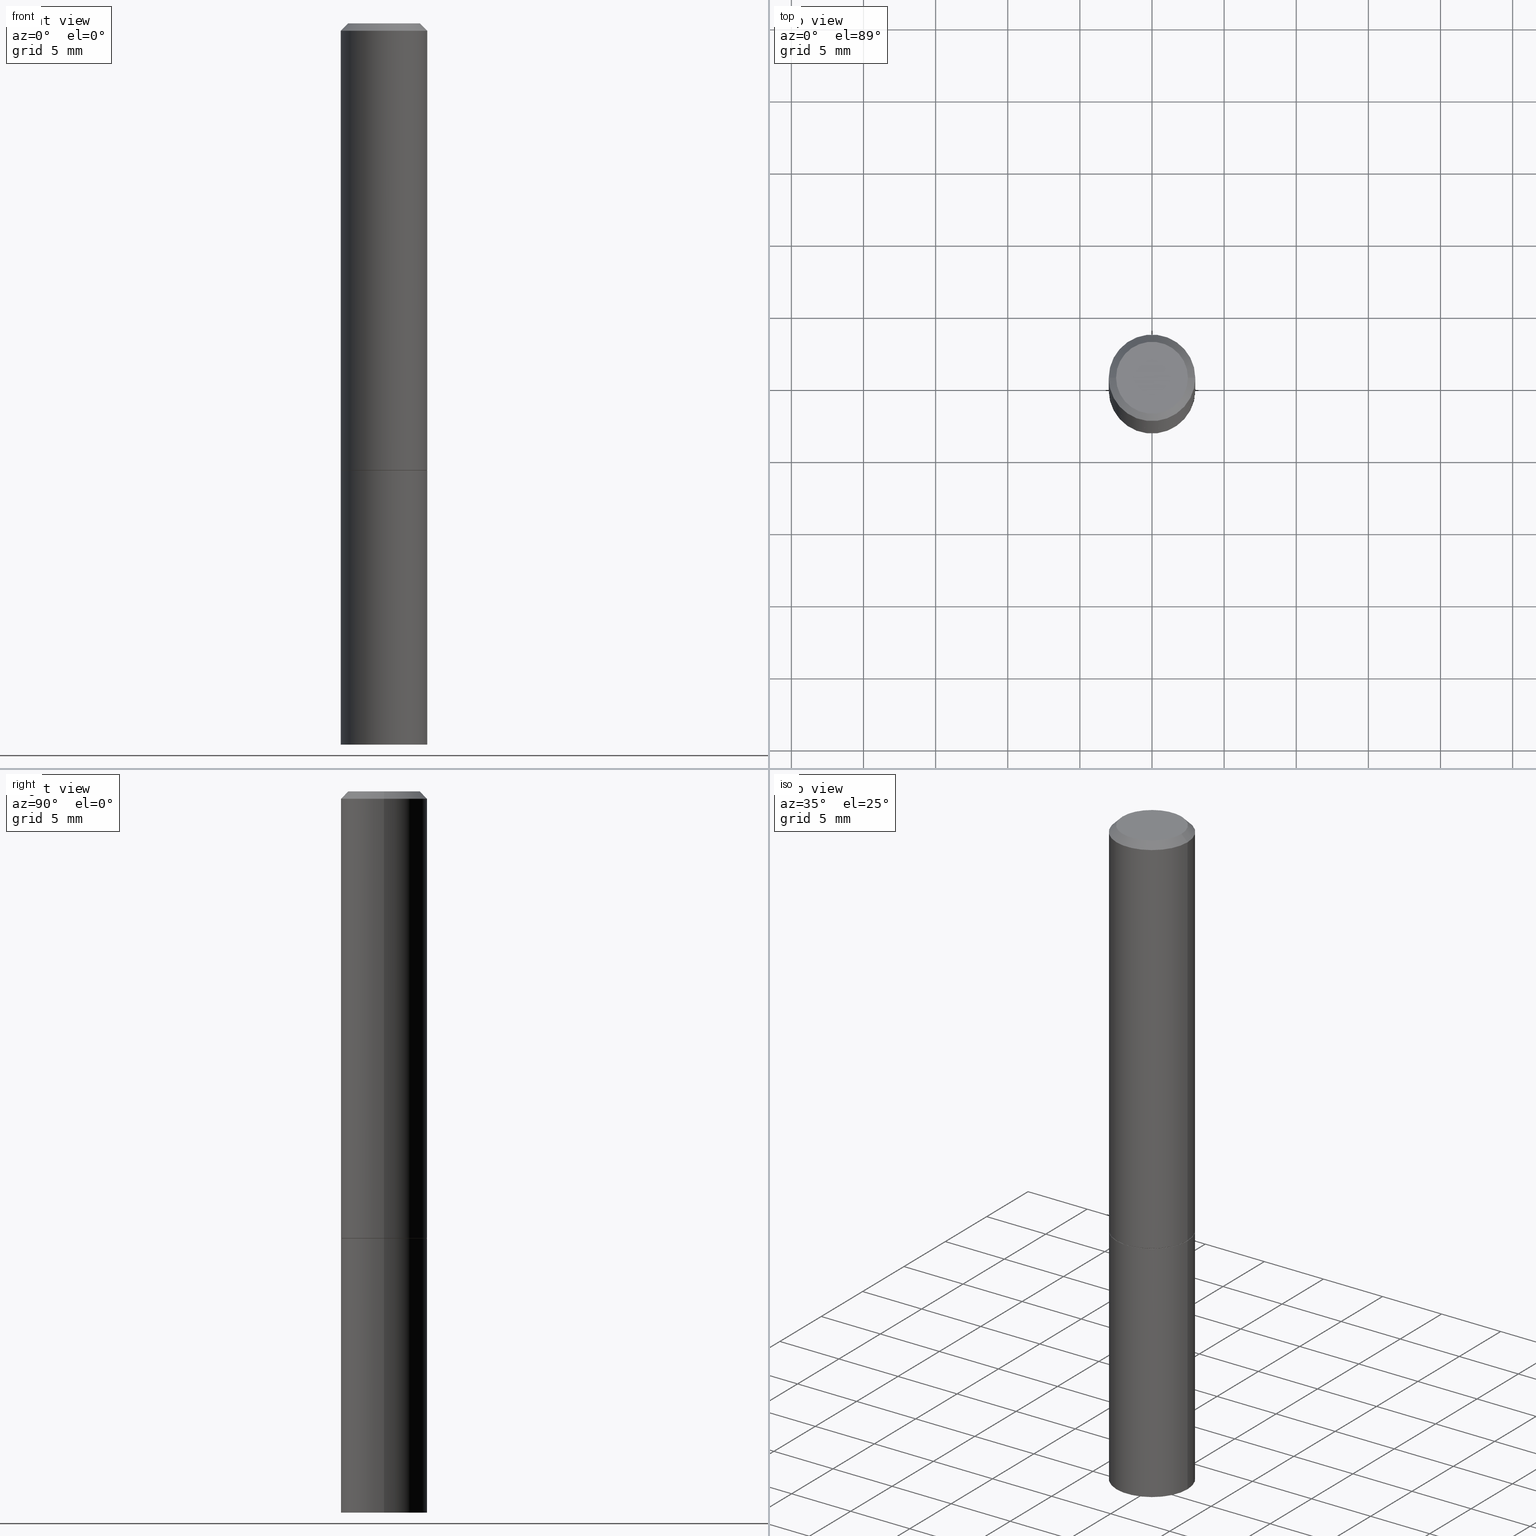
[diagram: canonical four-view strip — front | top / right | iso, engineering-drawing reading convention]
A machine part, canonical four-view strip (front | top / right | iso — engineering-drawing reading convention). The complete STEP part file that produces these views, byte-faithful:
ISO-10303-21;
HEADER;
FILE_DESCRIPTION (( 'STEP AP203' ),
    '1' );
FILE_NAME ('48680.STEP',
    '2024-02-28T13:44:43',
    ( '' ),
    ( '' ),
    'SwSTEP 2.0',
    'SolidWorks 2023',
    '' );
FILE_SCHEMA (( 'CONFIG_CONTROL_DESIGN' ));
ENDSEC;

DATA;
#1 = VERTEX_POINT ( 'NONE', #295 ) ;
#2 = APPROVAL_PERSON_ORGANIZATION ( #140, #302, #58 ) ;
#3 = ORIENTED_EDGE ( 'NONE', *, *, #310, .F. ) ;
#4 = EDGE_CURVE ( 'NONE', #172, #119, #230, .T. ) ;
#5 = FACE_OUTER_BOUND ( 'NONE', #227, .T. ) ;
#6 = APPLICATION_PROTOCOL_DEFINITION ( 'international standard', 'config_control_design', 1994, #94 ) ;
#7 = DIMENSIONAL_EXPONENTS ( 1.000000000000000000, 0.000000000000000000, 0.000000000000000000, 0.000000000000000000, 0.000000000000000000, 0.000000000000000000, 0.000000000000000000 ) ;
#8 =( GEOMETRIC_REPRESENTATION_CONTEXT ( 3 ) GLOBAL_UNCERTAINTY_ASSIGNED_CONTEXT ( ( #222 ) ) GLOBAL_UNIT_ASSIGNED_CONTEXT ( ( #129, #211, #109 ) ) REPRESENTATION_CONTEXT ( 'NONE', 'WORKASPACE' ) );
#9 = DIRECTION ( 'NONE',  ( 1.000000000000000000, -6.982962677686265133E-15, 0.000000000000000000 ) ) ;
#10 = APPROVAL_STATUS ( 'not_yet_approved' ) ;
#11 = PRODUCT_RELATED_PRODUCT_CATEGORY ( 'detail', '', ( #132 ) ) ;
#12 = COORDINATED_UNIVERSAL_TIME_OFFSET ( 5, 0, .BEHIND. ) ;
#13 = PRODUCT_DEFINITION_SHAPE ( 'NONE', 'NONE',  #315 ) ;
#14 = LINE ( 'NONE', #107, #83 ) ;
#15 = DIRECTION ( 'NONE',  ( -2.445468806185136597E-29, 3.491481338843145583E-15, 1.000000000000000000 ) ) ;
#16 = LOCAL_TIME ( 8, 44, 43.00000000000000000, #12 ) ;
#17 = PERSON_AND_ORGANIZATION ( #31, #317 ) ;
#18 = DIRECTION ( 'NONE',  ( 1.000000000000000000, -6.982962677686266711E-15, 4.876176775795936353E-29 ) ) ;
#19 = CARTESIAN_POINT ( 'NONE',  ( 0.000000000000000000, 0.000000000000000000, 0.000000000000000000 ) ) ;
#20 = PERSON_AND_ORGANIZATION_ROLE ( 'classification_officer' ) ;
#21 = EDGE_CURVE ( 'NONE', #1, #60, #156, .T. ) ;
#22 = APPLICATION_CONTEXT ( 'configuration controlled 3d designs of mechanical parts and assemblies' ) ;
#23 = FACE_OUTER_BOUND ( 'NONE', #259, .T. ) ;
#24 = SECURITY_CLASSIFICATION_LEVEL ( 'unclassified' ) ;
#25 = DIRECTION ( 'NONE',  ( 0.7071067811866199593, -2.468850131083015945E-15, 0.7071067811864750752 ) ) ;
#26 = VECTOR ( 'NONE', #126, 39.37007874015748143 ) ;
#27 = CIRCLE ( 'NONE', #284, 0.1170999999999999958 ) ;
#28 = COORDINATED_UNIVERSAL_TIME_OFFSET ( 5, 0, .BEHIND. ) ;
#29 = PLANE ( 'NONE',  #68 ) ;
#30 = ADVANCED_FACE ( 'NONE', ( #5 ), #320, .T. ) ;
#31 = PERSON ( 'UNSPECIFIED', 'UNSPECIFIED', 'UNSPECIFIED', ('UNSPECIFIED'), ('UNSPECIFIED'), ('UNSPECIFIED') ) ;
#32 = PERSON_AND_ORGANIZATION ( #31, #317 ) ;
#33 = VERTEX_POINT ( 'NONE', #44 ) ;
#34 = ORIENTED_EDGE ( 'NONE', *, *, #201, .T. ) ;
#35 = APPROVAL ( #10, 'UNSPECIFIED' ) ;
#36 = ORIENTED_EDGE ( 'NONE', *, *, #247, .F. ) ;
#37 = ORIENTED_EDGE ( 'NONE', *, *, #4, .T. ) ;
#38 = CLOSED_SHELL ( 'NONE', ( #254, #274, #366, #234, #30, #195, #89, #306 ) ) ;
#39 = AXIS2_PLACEMENT_3D ( 'NONE', #19, #196, #198 ) ;
#40 = ORIENTED_EDGE ( 'NONE', *, *, #282, .T. ) ;
#41 = DIRECTION ( 'NONE',  ( -2.445468806185136877E-29, 3.491481338843145188E-15, 1.000000000000000000 ) ) ;
#42 = PERSON_AND_ORGANIZATION_ROLE ( 'creator' ) ;
#43 = AXIS2_PLACEMENT_3D ( 'NONE', #269, #75, #162 ) ;
#44 = CARTESIAN_POINT ( 'NONE',  ( 0.1180999999999998301, -8.800544403136797528E-16, -0.02000000000000003511 ) ) ;
#45 = APPLICATION_PROTOCOL_DEFINITION ( 'international standard', 'config_control_design', 1994, #22 ) ;
#46 = CARTESIAN_POINT ( 'NONE',  ( 2.984694677948958911E-29, -4.261352974058059028E-15, -1.220499999999999918 ) ) ;
#47 = CARTESIAN_POINT ( 'NONE',  ( -0.1180999999999998301, 7.548582654578837811E-16, -0.02000000000000003511 ) ) ;
#48 = EDGE_LOOP ( 'NONE', ( #147, #149, #231, #263 ) ) ;
#49 = PERSON_AND_ORGANIZATION ( #31, #317 ) ;
#50 = DIRECTION ( 'NONE',  ( -2.445468806185136597E-29, 3.491481338843145583E-15, 1.000000000000000000 ) ) ;
#51 = CARTESIAN_POINT ( 'NONE',  ( 0.000000000000000000, 0.000000000000000000, 0.000000000000000000 ) ) ;
#52 = AXIS2_PLACEMENT_3D ( 'NONE', #270, #77, #323 ) ;
#53 = LOCAL_TIME ( 8, 44, 43.00000000000000000, #28 ) ;
#54 = DIRECTION ( 'NONE',  ( 1.000000000000000000, -6.982962677686266711E-15, 4.876195163481339890E-29 ) ) ;
#55 = DIRECTION ( 'NONE',  ( -2.445468806185136597E-29, 3.491481338843145583E-15, 1.000000000000000000 ) ) ;
#56 = DIRECTION ( 'NONE',  ( 1.000000000000000000, -6.982962677686266711E-15, 0.000000000000000000 ) ) ;
#57 = ADVANCED_FACE ( 'NONE', ( #238 ), #349, .F. ) ;
#58 = APPROVAL_ROLE ( '' ) ;
#59 = ORIENTED_EDGE ( 'NONE', *, *, #164, .T. ) ;
#60 = VERTEX_POINT ( 'NONE', #76 ) ;
#61 = APPROVAL_PERSON_ORGANIZATION ( #244, #35, #352 ) ;
#62 = EDGE_CURVE ( 'NONE', #90, #175, #213, .T. ) ;
#63 = VERTEX_POINT ( 'NONE', #160 ) ;
#64 = EDGE_LOOP ( 'NONE', ( #205, #285, #342, #123 ) ) ;
#65 = ORIENTED_EDGE ( 'NONE', *, *, #62, .F. ) ;
#66 = AXIS2_PLACEMENT_3D ( 'NONE', #189, #50, #18 ) ;
#67 = AXIS2_PLACEMENT_3D ( 'NONE', #127, #210, #235 ) ;
#68 = AXIS2_PLACEMENT_3D ( 'NONE', #144, #99, #103 ) ;
#69 = CC_DESIGN_PERSON_AND_ORGANIZATION_ASSIGNMENT ( #17, #226, ( #74 ) ) ;
#70 = DIRECTION ( 'NONE',  ( 1.000000000000000000, -6.982962677686265133E-15, 0.000000000000000000 ) ) ;
#71 = CARTESIAN_POINT ( 'NONE',  ( 0.1170999999999999958, -5.079057903615120487E-15, -1.220499999999999918 ) ) ;
#72 = DIRECTION ( 'NONE',  ( -1.000000000000000000, 6.982962677686266711E-15, 0.000000000000000000 ) ) ;
#73 =( LENGTH_UNIT ( ) NAMED_UNIT ( * ) SI_UNIT ( $, .METRE. ) );
#74 = PRODUCT_DEFINITION_FORMATION_WITH_SPECIFIED_SOURCE ( 'ANY', '', #132, .NOT_KNOWN. ) ;
#75 = DIRECTION ( 'NONE',  ( -2.445468806185136597E-29, 3.491481338843145583E-15, 1.000000000000000000 ) ) ;
#76 = CARTESIAN_POINT ( 'NONE',  ( 0.1180999999999999966, -7.697668907747479970E-15, -1.968500000000000139 ) ) ;
#77 = DIRECTION ( 'NONE',  ( 2.438088387897960049E-29, -3.491481338843145188E-15, -1.000000000000000000 ) ) ;
#78 = DIRECTION ( 'NONE',  ( 2.445468806185136597E-29, -3.491481338843145583E-15, -1.000000000000000000 ) ) ;
#79 = DIRECTION ( 'NONE',  ( 1.000000000000000000, -6.982962677686266711E-15, 4.876176775795935793E-29 ) ) ;
#80 = EDGE_CURVE ( 'NONE', #60, #172, #179, .T. ) ;
#81 = DIRECTION ( 'NONE',  ( 0.000000000000000000, 0.000000000000000000, 1.000000000000000000 ) ) ;
#82 = DIRECTION ( 'NONE',  ( 1.000000000000000000, -6.982962677686269077E-15, 0.000000000000000000 ) ) ;
#83 = VECTOR ( 'NONE', #215, 39.37007874015748143 ) ;
#84 = CONICAL_SURFACE ( 'NONE', #362, 0.1180999999999998301, 0.7853981633974471688 ) ;
#85 = CARTESIAN_POINT ( 'NONE',  ( 2.984694677948958911E-29, -4.261352974058059028E-15, -1.220499999999999918 ) ) ;
#86 = DIRECTION ( 'NONE',  ( -2.445468806185136597E-29, 3.491481338843145583E-15, 1.000000000000000000 ) ) ;
#87 = FACE_OUTER_BOUND ( 'NONE', #364, .T. ) ;
#88 = AXIS2_PLACEMENT_3D ( 'NONE', #194, #329, #334 ) ;
#89 = ADVANCED_FACE ( 'NONE', ( #154 ), #265, .F. ) ;
#90 = VERTEX_POINT ( 'NONE', #346 ) ;
#91 = ORIENTED_EDGE ( 'NONE', *, *, #164, .F. ) ;
#92 = CONICAL_SURFACE ( 'NONE', #192, 0.1170999999999999958, 0.7853981633975507526 ) ;
#93 = CC_DESIGN_APPROVAL ( #100, ( #315 ) ) ;
#94 = APPLICATION_CONTEXT ( 'configuration controlled 3d designs of mechanical parts and assemblies' ) ;
#95 = EDGE_LOOP ( 'NONE', ( #98, #316 ) ) ;
#96 = VERTEX_POINT ( 'NONE', #71 ) ;
#97 = ADVANCED_FACE ( 'NONE', ( #181 ), #293, .T. ) ;
#98 = ORIENTED_EDGE ( 'NONE', *, *, #145, .F. ) ;
#99 = DIRECTION ( 'NONE',  ( 2.438088387897960049E-29, -3.491481338843145188E-15, -1.000000000000000000 ) ) ;
#100 = APPROVAL ( #157, 'UNSPECIFIED' ) ;
#101 = DIRECTION ( 'NONE',  ( 1.000000000000000000, -6.982962677686265133E-15, 0.000000000000000000 ) ) ;
#102 = DIRECTION ( 'NONE',  ( -2.445468806185136597E-29, 3.491481338843145583E-15, 1.000000000000000000 ) ) ;
#103 = DIRECTION ( 'NONE',  ( -1.000000000000000000, 6.982962677686265922E-15, -4.876176775795935793E-29 ) ) ;
#104 = AXIS2_PLACEMENT_3D ( 'NONE', #246, #353, #328 ) ;
#105 = DIRECTION ( 'NONE',  ( 1.000000000000000000, -6.982962677686266711E-15, 4.876176775795935793E-29 ) ) ;
#106 = APPROVAL_DATE_TIME ( #133, #35 ) ;
#107 = CARTESIAN_POINT ( 'NONE',  ( 0.1180999999999998301, -8.800544403136797528E-16, -0.02000000000000003511 ) ) ;
#108 = CARTESIAN_POINT ( 'NONE',  ( -0.1180999999999999134, 8.391509709326777040E-16, -5.809262341591039580E-30 ) ) ;
#109 =( NAMED_UNIT ( * ) SI_UNIT ( $, .STERADIAN. ) SOLID_ANGLE_UNIT ( ) );
#110 = DIRECTION ( 'NONE',  ( 2.438088387897960049E-29, -3.491481338843145188E-15, -1.000000000000000000 ) ) ;
#111 = CARTESIAN_POINT ( 'NONE',  ( -0.09809999999999984011, 7.199434520694527237E-16, 4.268512490095498617E-18 ) ) ;
#112 = CIRCLE ( 'NONE', #173, 0.1170999999999999958 ) ;
#113 = CALENDAR_DATE ( 2024, 28, 2 ) ;
#114 = FACE_OUTER_BOUND ( 'NONE', #125, .T. ) ;
#115 = DIRECTION ( 'NONE',  ( 1.000000000000000000, -6.982962677686265133E-15, 0.000000000000000000 ) ) ;
#116 = CIRCLE ( 'NONE', #43, 0.1180999999999998301 ) ;
#117 = CC_DESIGN_PERSON_AND_ORGANIZATION_ASSIGNMENT ( #32, #20, ( #209 ) ) ;
#118 = ORIENTED_EDGE ( 'NONE', *, *, #21, .T. ) ;
#119 = VERTEX_POINT ( 'NONE', #207 ) ;
#120 = EDGE_LOOP ( 'NONE', ( #202, #118, #314, #36 ) ) ;
#121 = VECTOR ( 'NONE', #186, 39.37007874015748143 ) ;
#122 = AXIS2_PLACEMENT_3D ( 'NONE', #248, #168, #354 ) ;
#123 = ORIENTED_EDGE ( 'NONE', *, *, #130, .F. ) ;
#124 = EDGE_CURVE ( 'NONE', #63, #90, #233, .T. ) ;
#125 = EDGE_LOOP ( 'NONE', ( #281, #336, #338, #59 ) ) ;
#126 = DIRECTION ( 'NONE',  ( -0.7071067811866199593, 7.493145998870616062E-15, 0.7071067811864750752 ) ) ;
#127 = CARTESIAN_POINT ( 'NONE',  ( 2.984694677948959472E-29, -4.261352974058059028E-15, -1.220499999999999918 ) ) ;
#128 = LOCAL_TIME ( 8, 44, 43.00000000000000000, #155 ) ;
#129 =( CONVERSION_BASED_UNIT ( 'INCH', #267 ) LENGTH_UNIT ( ) NAMED_UNIT ( #7 ) );
#130 = EDGE_CURVE ( 'NONE', #313, #33, #245, .T. ) ;
#131 = CARTESIAN_POINT ( 'NONE',  ( 4.890937612370281041E-31, -6.982962677686302702E-17, -0.02000000000000003511 ) ) ;
#132 = PRODUCT ( '48680', '48680', '', ( #191 ) ) ;
#133 = DATE_AND_TIME ( #350, #128 ) ;
#134 = DIRECTION ( 'NONE',  ( 1.000000000000000000, -6.982962677686269077E-15, 0.000000000000000000 ) ) ;
#135 = DESIGN_CONTEXT ( 'detailed design', #22, 'design' ) ;
#136 = CALENDAR_DATE ( 2024, 28, 2 ) ;
#137 = CC_DESIGN_SECURITY_CLASSIFICATION ( #209, ( #74 ) ) ;
#138 = CC_DESIGN_PERSON_AND_ORGANIZATION_ASSIGNMENT ( #49, #42, ( #315 ) ) ;
#139 = DIRECTION ( 'NONE',  ( -2.445468806185136877E-29, 3.491481338843145188E-15, 1.000000000000000000 ) ) ;
#140 = PERSON_AND_ORGANIZATION ( #31, #317 ) ;
#141 = FACE_OUTER_BOUND ( 'NONE', #120, .T. ) ;
#142 = DIRECTION ( 'NONE',  ( 1.000000000000000000, -6.982962677686269077E-15, 0.000000000000000000 ) ) ;
#143 = CIRCLE ( 'NONE', #308, 0.1180999999999999966 ) ;
#144 = CARTESIAN_POINT ( 'NONE',  ( 8.246878922347960873E-16, 0.1180999999999931133, -1.968500000000000583 ) ) ;
#145 = EDGE_CURVE ( 'NONE', #60, #1, #343, .T. ) ;
#146 = CLOSED_SHELL ( 'NONE', ( #97, #341, #57, #258 ) ) ;
#147 = ORIENTED_EDGE ( 'NONE', *, *, #145, .T. ) ;
#148 = ORIENTED_EDGE ( 'NONE', *, *, #356, .F. ) ;
#149 = ORIENTED_EDGE ( 'NONE', *, *, #225, .T. ) ;
#150 = ORIENTED_EDGE ( 'NONE', *, *, #310, .T. ) ;
#151 = CIRCLE ( 'NONE', #279, 0.09809999999999984011 ) ;
#152 = EDGE_LOOP ( 'NONE', ( #260, #34, #40, #262 ) ) ;
#153 = LINE ( 'NONE', #304, #283 ) ;
#154 = FACE_OUTER_BOUND ( 'NONE', #204, .T. ) ;
#155 = COORDINATED_UNIVERSAL_TIME_OFFSET ( 5, 0, .BEHIND. ) ;
#156 = CIRCLE ( 'NONE', #339, 0.1180999999999999966 ) ;
#157 = APPROVAL_STATUS ( 'not_yet_approved' ) ;
#158 = DATE_AND_TIME ( #136, #16 ) ;
#159 = DIRECTION ( 'NONE',  ( -2.445468806185136597E-29, 3.491481338843145583E-15, 1.000000000000000000 ) ) ;
#160 = CARTESIAN_POINT ( 'NONE',  ( -0.1170999999999999958, -3.424008976134759437E-15, -1.220499999999999918 ) ) ;
#161 = APPROVAL_ROLE ( '' ) ;
#162 = DIRECTION ( 'NONE',  ( 1.000000000000000000, -6.982962677686266711E-15, 0.000000000000000000 ) ) ;
#163 = CARTESIAN_POINT ( 'NONE',  ( 2.984694677948959472E-29, -4.261352974058059028E-15, -1.220499999999999918 ) ) ;
#164 = EDGE_CURVE ( 'NONE', #175, #33, #116, .T. ) ;
#165 = CIRCLE ( 'NONE', #330, 0.09809999999999984011 ) ;
#166 = APPROVAL_PERSON_ORGANIZATION ( #322, #100, #161 ) ;
#167 = DIRECTION ( 'NONE',  ( -1.000000000000000000, 6.982962677686265922E-15, -4.876176775795935793E-29 ) ) ;
#168 = DIRECTION ( 'NONE',  ( -2.445468806185136597E-29, 3.491481338843145583E-15, 1.000000000000000000 ) ) ;
#169 = DIRECTION ( 'NONE',  ( -2.445468806185136597E-29, 3.491481338843145583E-15, 1.000000000000000000 ) ) ;
#170 = DIRECTION ( 'NONE',  ( 1.000000000000000000, -6.982962677686266711E-15, 4.876195163481339890E-29 ) ) ;
#171 = DATE_AND_TIME ( #113, #193 ) ;
#172 = VERTEX_POINT ( 'NONE', #272 ) ;
#173 = AXIS2_PLACEMENT_3D ( 'NONE', #277, #55, #82 ) ;
#174 = ORIENTED_EDGE ( 'NONE', *, *, #356, .T. ) ;
#175 = VERTEX_POINT ( 'NONE', #291 ) ;
#176 = EDGE_LOOP ( 'NONE', ( #37, #183 ) ) ;
#177 = ORIENTED_EDGE ( 'NONE', *, *, #130, .T. ) ;
#178 = DIRECTION ( 'NONE',  ( -2.445468806185136597E-29, 3.491481338843145583E-15, 1.000000000000000000 ) ) ;
#179 = LINE ( 'NONE', #292, #335 ) ;
#180 = CC_DESIGN_PERSON_AND_ORGANIZATION_ASSIGNMENT ( #200, #360, ( #74 ) ) ;
#181 = FACE_OUTER_BOUND ( 'NONE', #48, .T. ) ;
#182 = APPROVAL_DATE_TIME ( #297, #100 ) ;
#183 = ORIENTED_EDGE ( 'NONE', *, *, #247, .T. ) ;
#184 = AXIS2_PLACEMENT_3D ( 'NONE', #190, #110, #167 ) ;
#185 = CARTESIAN_POINT ( 'NONE',  ( -0.1170999999999999958, -3.429307430482981050E-15, -1.220499999999999918 ) ) ;
#186 = DIRECTION ( 'NONE',  ( -2.445468806185136877E-29, 3.491481338843145188E-15, 1.000000000000000000 ) ) ;
#187 = ADVANCED_BREP_SHAPE_REPRESENTATION ( '48680', ( #337, #219, #318 ), #8 ) ;
#188 = CARTESIAN_POINT ( 'NONE',  ( 0.000000000000000000, 0.000000000000000000, 0.000000000000000000 ) ) ;
#189 = CARTESIAN_POINT ( 'NONE',  ( 0.000000000000000000, 0.000000000000000000, 0.000000000000000000 ) ) ;
#190 = CARTESIAN_POINT ( 'NONE',  ( 6.850286386810215676E-16, 0.09809999999999984011, -3.403800630954618031E-16 ) ) ;
#191 = MECHANICAL_CONTEXT ( 'NONE', #94, 'mechanical' ) ;
#192 = AXIS2_PLACEMENT_3D ( 'NONE', #46, #159, #134 ) ;
#193 = LOCAL_TIME ( 8, 44, 43.00000000000000000, #332 ) ;
#194 = CARTESIAN_POINT ( 'NONE',  ( 2.984694677948959472E-29, -4.261352974058059028E-15, -1.220499999999999918 ) ) ;
#195 = ADVANCED_FACE ( 'NONE', ( #298 ), #92, .T. ) ;
#196 = DIRECTION ( 'NONE',  ( -2.445468806185136597E-29, 3.491481338843145583E-15, 1.000000000000000000 ) ) ;
#197 = FACE_OUTER_BOUND ( 'NONE', #64, .T. ) ;
#198 = DIRECTION ( 'NONE',  ( 1.000000000000000000, -6.982962677686266711E-15, 4.876176775795936353E-29 ) ) ;
#199 = VECTOR ( 'NONE', #212, 39.37007874015748143 ) ;
#200 = PERSON_AND_ORGANIZATION ( #31, #317 ) ;
#201 = EDGE_CURVE ( 'NONE', #365, #33, #14, .T. ) ;
#202 = ORIENTED_EDGE ( 'NONE', *, *, #225, .F. ) ;
#203 = AXIS2_PLACEMENT_3D ( 'NONE', #241, #102, #105 ) ;
#204 = EDGE_LOOP ( 'NONE', ( #208, #229 ) ) ;
#205 = ORIENTED_EDGE ( 'NONE', *, *, #239, .T. ) ;
#206 = ORIENTED_EDGE ( 'NONE', *, *, #124, .F. ) ;
#207 = CARTESIAN_POINT ( 'NONE',  ( -0.1180999999999999966, -4.728016023852716776E-15, -1.220499999999999918 ) ) ;
#208 = ORIENTED_EDGE ( 'NONE', *, *, #289, .F. ) ;
#209 = SECURITY_CLASSIFICATION ( '', '', #24 ) ;
#210 = DIRECTION ( 'NONE',  ( -2.438088387897960049E-29, 3.491481338843145188E-15, 1.000000000000000000 ) ) ;
#211 =( NAMED_UNIT ( * ) PLANE_ANGLE_UNIT ( ) SI_UNIT ( $, .RADIAN. ) );
#212 = DIRECTION ( 'NONE',  ( -0.7071067811865466846, 2.468850131082247989E-15, -0.7071067811865483499 ) ) ;
#213 = LINE ( 'NONE', #108, #121 ) ;
#214 = CARTESIAN_POINT ( 'NONE',  ( 0.09809999999999984011, -7.765346469475328709E-16, 4.268512490105521927E-18 ) ) ;
#215 = DIRECTION ( 'NONE',  ( 0.7071067811865466846, -7.319954787623252890E-15, -0.7071067811865483499 ) ) ;
#216 = DIRECTION ( 'NONE',  ( -2.445468806185136597E-29, 3.491481338843145583E-15, 1.000000000000000000 ) ) ;
#217 = CC_DESIGN_DATE_AND_TIME_ASSIGNMENT ( #158, #236, ( #315 ) ) ;
#218 = DIRECTION ( 'NONE',  ( -1.000000000000000000, 6.982962677686266711E-15, 0.000000000000000000 ) ) ;
#219 = MANIFOLD_SOLID_BREP ( 'Body-Move/Copy2[2]', #38 ) ;
#220 = SHAPE_DEFINITION_REPRESENTATION ( #13, #187 ) ;
#221 = DIRECTION ( 'NONE',  ( 2.445468806185136597E-29, -3.491481338843145583E-15, -1.000000000000000000 ) ) ;
#222 = UNCERTAINTY_MEASURE_WITH_UNIT (LENGTH_MEASURE( 1.000000000000000082E-05 ), #129, 'distance_accuracy_value', 'NONE');
#223 = CARTESIAN_POINT ( 'NONE',  ( 2.982249209142773869E-29, -4.257861492719216809E-15, -1.219500000000000028 ) ) ;
#224 = CALENDAR_DATE ( 2024, 28, 2 ) ;
#225 = EDGE_CURVE ( 'NONE', #1, #119, #153, .T. ) ;
#226 = PERSON_AND_ORGANIZATION_ROLE ( 'creator' ) ;
#227 = EDGE_LOOP ( 'NONE', ( #65, #174, #177, #91 ) ) ;
#228 = EDGE_CURVE ( 'NONE', #311, #365, #165, .T. ) ;
#229 = ORIENTED_EDGE ( 'NONE', *, *, #321, .F. ) ;
#230 = CIRCLE ( 'NONE', #242, 0.1180999999999999966 ) ;
#231 = ORIENTED_EDGE ( 'NONE', *, *, #4, .F. ) ;
#232 = ORIENTED_EDGE ( 'NONE', *, *, #321, .T. ) ;
#233 = LINE ( 'NONE', #185, #26 ) ;
#234 = ADVANCED_FACE ( 'NONE', ( #114 ), #84, .T. ) ;
#235 = DIRECTION ( 'NONE',  ( 1.000000000000000000, -6.982962677686265922E-15, 4.876176775795935793E-29 ) ) ;
#236 = DATE_TIME_ROLE ( 'creation_date' ) ;
#237 = CARTESIAN_POINT ( 'NONE',  ( 0.1180999999999999134, -8.246878922347474737E-16, 5.758764772214996237E-30 ) ) ;
#238 = FACE_OUTER_BOUND ( 'NONE', #176, .T. ) ;
#239 = EDGE_CURVE ( 'NONE', #313, #90, #143, .T. ) ;
#240 = FACE_OUTER_BOUND ( 'NONE', #152, .T. ) ;
#241 = CARTESIAN_POINT ( 'NONE',  ( 0.000000000000000000, 0.000000000000000000, 0.000000000000000000 ) ) ;
#242 = AXIS2_PLACEMENT_3D ( 'NONE', #163, #15, #70 ) ;
#243 = VECTOR ( 'NONE', #25, 39.37007874015748143 ) ;
#244 = PERSON_AND_ORGANIZATION ( #31, #317 ) ;
#245 = LINE ( 'NONE', #237, #303 ) ;
#246 = CARTESIAN_POINT ( 'NONE',  ( 2.982249209142773869E-29, -4.257861492719216809E-15, -1.219500000000000028 ) ) ;
#247 = EDGE_CURVE ( 'NONE', #119, #172, #275, .T. ) ;
#248 = CARTESIAN_POINT ( 'NONE',  ( 2.984694677948958911E-29, -4.261352974058059028E-15, -1.220499999999999918 ) ) ;
#249 = LINE ( 'NONE', #355, #243 ) ;
#250 = DATE_TIME_ROLE ( 'classification_date' ) ;
#251 = LOCAL_TIME ( 8, 44, 43.00000000000000000, #268 ) ;
#252 = CARTESIAN_POINT ( 'NONE',  ( -1.043851414335219820E-46, 1.490343170380447200E-32, 4.268512490100411279E-18 ) ) ;
#253 = CYLINDRICAL_SURFACE ( 'NONE', #39, 0.1180999999999999966 ) ;
#254 = ADVANCED_FACE ( 'NONE', ( #87 ), #312, .T. ) ;
#255 = APPROVAL_DATE_TIME ( #171, #302 ) ;
#256 = CIRCLE ( 'NONE', #104, 0.1180999999999999966 ) ;
#257 = ORIENTED_EDGE ( 'NONE', *, *, #327, .T. ) ;
#258 = ADVANCED_FACE ( 'NONE', ( #141 ), #253, .T. ) ;
#259 = EDGE_LOOP ( 'NONE', ( #325, #257 ) ) ;
#260 = ORIENTED_EDGE ( 'NONE', *, *, #327, .F. ) ;
#261 = CC_DESIGN_APPROVAL ( #35, ( #74 ) ) ;
#262 = ORIENTED_EDGE ( 'NONE', *, *, #345, .F. ) ;
#263 = ORIENTED_EDGE ( 'NONE', *, *, #80, .F. ) ;
#264 = CC_DESIGN_PERSON_AND_ORGANIZATION_ASSIGNMENT ( #299, #294, ( #132 ) ) ;
#265 = PLANE ( 'NONE',  #67 ) ;
#266 = CIRCLE ( 'NONE', #344, 0.1180999999999998301 ) ;
#267 = LENGTH_MEASURE_WITH_UNIT ( LENGTH_MEASURE( 0.02539999999999999897 ), #73 );
#268 = COORDINATED_UNIVERSAL_TIME_OFFSET ( 5, 0, .BEHIND. ) ;
#269 = CARTESIAN_POINT ( 'NONE',  ( 4.890937612370281041E-31, -6.982962677686302702E-17, -0.02000000000000003511 ) ) ;
#270 = CARTESIAN_POINT ( 'NONE',  ( 8.246878922347778449E-16, 0.1180999999999957362, -1.220500000000000362 ) ) ;
#271 = CALENDAR_DATE ( 2024, 28, 2 ) ;
#272 = CARTESIAN_POINT ( 'NONE',  ( 0.1180999999999999966, -5.086040866292807290E-15, -1.220499999999999918 ) ) ;
#273 = AXIS2_PLACEMENT_3D ( 'NONE', #348, #178, #101 ) ;
#274 = ADVANCED_FACE ( 'NONE', ( #197 ), #278, .T. ) ;
#275 = CIRCLE ( 'NONE', #88, 0.1180999999999999966 ) ;
#276 = CARTESIAN_POINT ( 'NONE',  ( 0.1180999999999999966, -5.082549384953964283E-15, -1.219500000000000028 ) ) ;
#277 = CARTESIAN_POINT ( 'NONE',  ( 2.984694677948958911E-29, -4.261352974058059028E-15, -1.220499999999999918 ) ) ;
#278 = CYLINDRICAL_SURFACE ( 'NONE', #296, 0.1180999999999999134 ) ;
#279 = AXIS2_PLACEMENT_3D ( 'NONE', #252, #359, #170 ) ;
#280 = FACE_OUTER_BOUND ( 'NONE', #95, .T. ) ;
#281 = ORIENTED_EDGE ( 'NONE', *, *, #201, .F. ) ;
#282 = EDGE_CURVE ( 'NONE', #33, #175, #266, .T. ) ;
#283 = VECTOR ( 'NONE', #139, 39.37007874015748143 ) ;
#284 = AXIS2_PLACEMENT_3D ( 'NONE', #85, #169, #142 ) ;
#285 = ORIENTED_EDGE ( 'NONE', *, *, #62, .T. ) ;
#286 = ORIENTED_EDGE ( 'NONE', *, *, #124, .T. ) ;
#287 = ORIENTED_EDGE ( 'NONE', *, *, #289, .T. ) ;
#288 = CONICAL_SURFACE ( 'NONE', #357, 0.1180999999999998301, 0.7853981633974471688 ) ;
#289 = EDGE_CURVE ( 'NONE', #96, #63, #112, .T. ) ;
#290 = ORIENTED_EDGE ( 'NONE', *, *, #239, .F. ) ;
#291 = CARTESIAN_POINT ( 'NONE',  ( -0.1180999999999998301, 7.548582654578837811E-16, -0.02000000000000003511 ) ) ;
#292 = CARTESIAN_POINT ( 'NONE',  ( 0.1180999999999999966, -8.246878922347480654E-16, 5.758764772215000440E-30 ) ) ;
#293 = CYLINDRICAL_SURFACE ( 'NONE', #66, 0.1180999999999999966 ) ;
#294 = PERSON_AND_ORGANIZATION_ROLE ( 'design_owner' ) ;
#295 = CARTESIAN_POINT ( 'NONE',  ( -0.1180999999999999966, -4.728016023852716776E-15, -1.968500000000000139 ) ) ;
#296 = AXIS2_PLACEMENT_3D ( 'NONE', #51, #216, #79 ) ;
#297 = DATE_AND_TIME ( #271, #251 ) ;
#298 = FACE_OUTER_BOUND ( 'NONE', #340, .T. ) ;
#299 = PERSON_AND_ORGANIZATION ( #31, #317 ) ;
#300 = DIRECTION ( 'NONE',  ( -2.445468806185136877E-29, 3.491481338843145188E-15, 1.000000000000000000 ) ) ;
#301 = CARTESIAN_POINT ( 'NONE',  ( 4.890937612370281041E-31, -6.982962677686302702E-17, -0.02000000000000003511 ) ) ;
#302 = APPROVAL ( #358, 'UNSPECIFIED' ) ;
#303 = VECTOR ( 'NONE', #300, 39.37007874015748143 ) ;
#304 = CARTESIAN_POINT ( 'NONE',  ( -0.1180999999999999966, 8.391509709326782957E-16, -5.809262341591043784E-30 ) ) ;
#305 = CARTESIAN_POINT ( 'NONE',  ( 4.890937612370281041E-31, -6.982962677686302702E-17, -0.02000000000000003511 ) ) ;
#306 = ADVANCED_FACE ( 'NONE', ( #23 ), #331, .F. ) ;
#307 = DIRECTION ( 'NONE',  ( -2.445468806185136597E-29, 3.491481338843145583E-15, 1.000000000000000000 ) ) ;
#308 = AXIS2_PLACEMENT_3D ( 'NONE', #223, #86, #115 ) ;
#309 = DATE_AND_TIME ( #224, #53 ) ;
#310 = EDGE_CURVE ( 'NONE', #96, #313, #249, .T. ) ;
#311 = VERTEX_POINT ( 'NONE', #111 ) ;
#312 = CONICAL_SURFACE ( 'NONE', #122, 0.1170999999999999958, 0.7853981633975507526 ) ;
#313 = VERTEX_POINT ( 'NONE', #276 ) ;
#314 = ORIENTED_EDGE ( 'NONE', *, *, #80, .T. ) ;
#315 = PRODUCT_DEFINITION ( 'UNKNOWN', '', #74, #135 ) ;
#316 = ORIENTED_EDGE ( 'NONE', *, *, #21, .F. ) ;
#317 = ORGANIZATION ( 'UNSPECIFIED', 'UNSPECIFIED', '' ) ;
#318 = AXIS2_PLACEMENT_3D ( 'NONE', #188, #81, #324 ) ;
#319 = CARTESIAN_POINT ( 'NONE',  ( 4.813905344975441835E-29, -6.872981015512731707E-15, -1.968500000000000139 ) ) ;
#320 = CYLINDRICAL_SURFACE ( 'NONE', #203, 0.1180999999999999134 ) ;
#321 = EDGE_CURVE ( 'NONE', #63, #96, #27, .T. ) ;
#322 = PERSON_AND_ORGANIZATION ( #31, #317 ) ;
#323 = DIRECTION ( 'NONE',  ( -1.000000000000000000, 6.982962677686265922E-15, -4.876176775795935793E-29 ) ) ;
#324 = DIRECTION ( 'NONE',  ( 1.000000000000000000, 0.000000000000000000, 0.000000000000000000 ) ) ;
#325 = ORIENTED_EDGE ( 'NONE', *, *, #228, .T. ) ;
#326 = LINE ( 'NONE', #47, #199 ) ;
#327 = EDGE_CURVE ( 'NONE', #365, #311, #151, .T. ) ;
#328 = DIRECTION ( 'NONE',  ( 1.000000000000000000, -6.982962677686265133E-15, 0.000000000000000000 ) ) ;
#329 = DIRECTION ( 'NONE',  ( -2.445468806185136597E-29, 3.491481338843145583E-15, 1.000000000000000000 ) ) ;
#330 = AXIS2_PLACEMENT_3D ( 'NONE', #333, #361, #54 ) ;
#331 = PLANE ( 'NONE',  #184 ) ;
#332 = COORDINATED_UNIVERSAL_TIME_OFFSET ( 5, 0, .BEHIND. ) ;
#333 = CARTESIAN_POINT ( 'NONE',  ( -1.043851414335219820E-46, 1.490343170380447200E-32, 4.268512490100411279E-18 ) ) ;
#334 = DIRECTION ( 'NONE',  ( 1.000000000000000000, -6.982962677686265133E-15, 0.000000000000000000 ) ) ;
#335 = VECTOR ( 'NONE', #41, 39.37007874015748143 ) ;
#336 = ORIENTED_EDGE ( 'NONE', *, *, #228, .F. ) ;
#337 = MANIFOLD_SOLID_BREP ( 'Body-Move/Copy2[1]', #146 ) ;
#338 = ORIENTED_EDGE ( 'NONE', *, *, #345, .T. ) ;
#339 = AXIS2_PLACEMENT_3D ( 'NONE', #319, #347, #9 ) ;
#340 = EDGE_LOOP ( 'NONE', ( #206, #232, #150, #148 ) ) ;
#341 = ADVANCED_FACE ( 'NONE', ( #280 ), #29, .T. ) ;
#342 = ORIENTED_EDGE ( 'NONE', *, *, #282, .F. ) ;
#343 = CIRCLE ( 'NONE', #273, 0.1180999999999999966 ) ;
#344 = AXIS2_PLACEMENT_3D ( 'NONE', #305, #307, #56 ) ;
#345 = EDGE_CURVE ( 'NONE', #311, #175, #326, .T. ) ;
#346 = CARTESIAN_POINT ( 'NONE',  ( -0.1180999999999999966, -1.324694588815359885E-15, -1.219500000000000028 ) ) ;
#347 = DIRECTION ( 'NONE',  ( -2.445468806185136597E-29, 3.491481338843145583E-15, 1.000000000000000000 ) ) ;
#348 = CARTESIAN_POINT ( 'NONE',  ( 4.813905344975441835E-29, -6.872981015512731707E-15, -1.968500000000000139 ) ) ;
#349 = PLANE ( 'NONE',  #52 ) ;
#350 = CALENDAR_DATE ( 2024, 28, 2 ) ;
#351 = CC_DESIGN_APPROVAL ( #302, ( #209 ) ) ;
#352 = APPROVAL_ROLE ( '' ) ;
#353 = DIRECTION ( 'NONE',  ( -2.445468806185136597E-29, 3.491481338843145583E-15, 1.000000000000000000 ) ) ;
#354 = DIRECTION ( 'NONE',  ( 1.000000000000000000, -6.982962677686269077E-15, 0.000000000000000000 ) ) ;
#355 = CARTESIAN_POINT ( 'NONE',  ( 0.1170999999999999958, -5.079057903615120487E-15, -1.220499999999999918 ) ) ;
#356 = EDGE_CURVE ( 'NONE', #90, #313, #256, .T. ) ;
#357 = AXIS2_PLACEMENT_3D ( 'NONE', #131, #78, #72 ) ;
#358 = APPROVAL_STATUS ( 'not_yet_approved' ) ;
#359 = DIRECTION ( 'NONE',  ( -2.445468806185136597E-29, 3.491481338843145583E-15, 1.000000000000000000 ) ) ;
#360 = PERSON_AND_ORGANIZATION_ROLE ( 'design_supplier' ) ;
#361 = DIRECTION ( 'NONE',  ( -2.445468806185136597E-29, 3.491481338843145583E-15, 1.000000000000000000 ) ) ;
#362 = AXIS2_PLACEMENT_3D ( 'NONE', #301, #221, #218 ) ;
#363 = CC_DESIGN_DATE_AND_TIME_ASSIGNMENT ( #309, #250, ( #209 ) ) ;
#364 = EDGE_LOOP ( 'NONE', ( #287, #286, #290, #3 ) ) ;
#365 = VERTEX_POINT ( 'NONE', #214 ) ;
#366 = ADVANCED_FACE ( 'NONE', ( #240 ), #288, .T. ) ;
ENDSEC;
END-ISO-10303-21;
